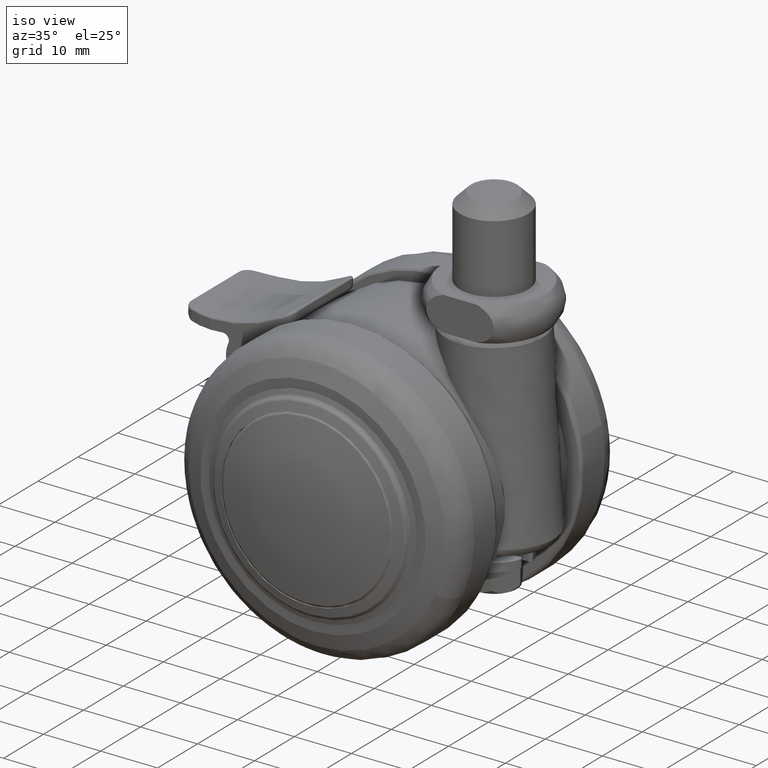
[diagram: clean part render]
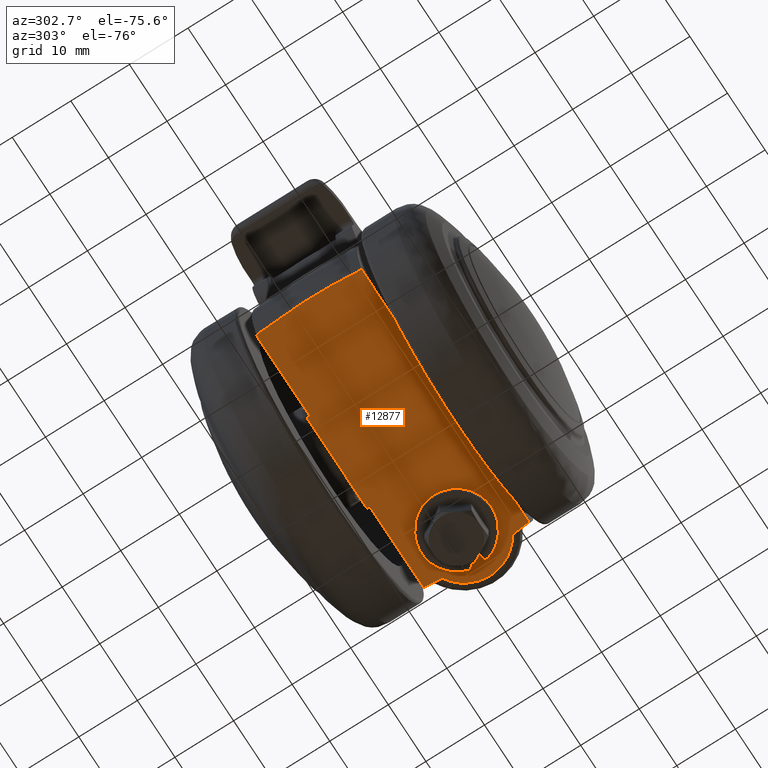
[diagram: tour spotlight — one face highlighted and labeled with its STEP entity id]
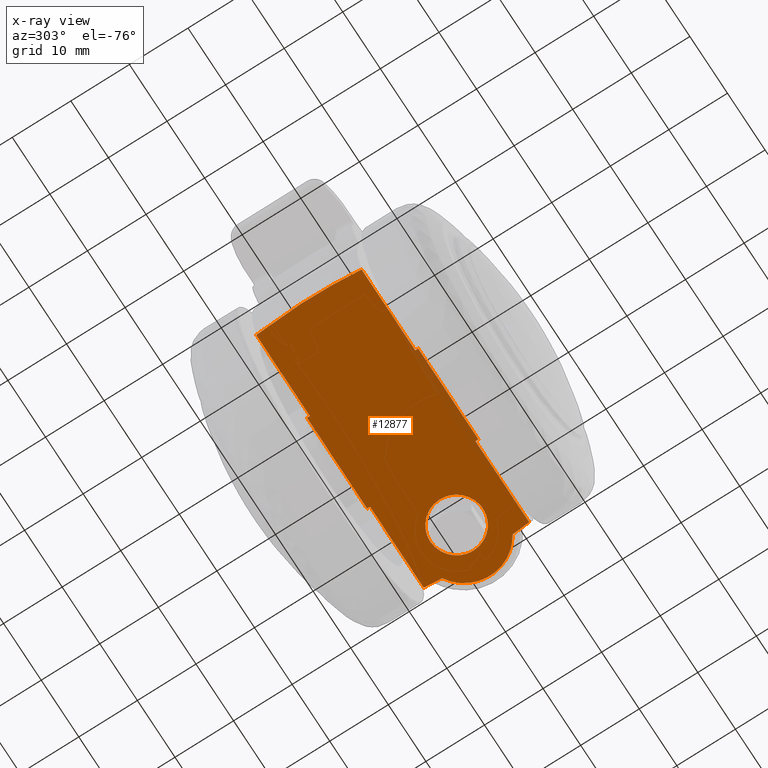
[diagram: x-ray of the same camera — body ghosted, this tour face saturated]
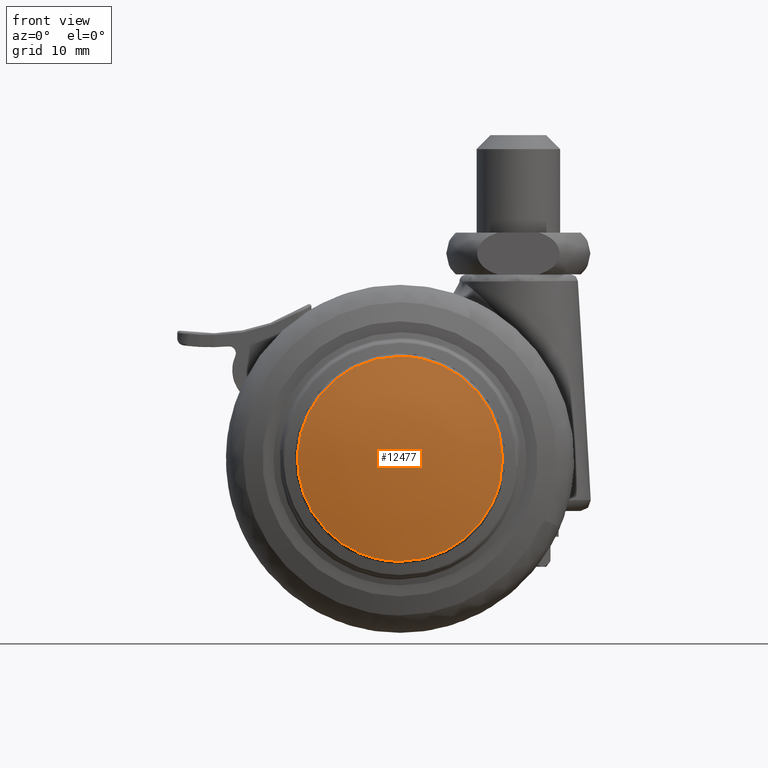
[diagram: tour spotlight — one face highlighted and labeled with its STEP entity id]
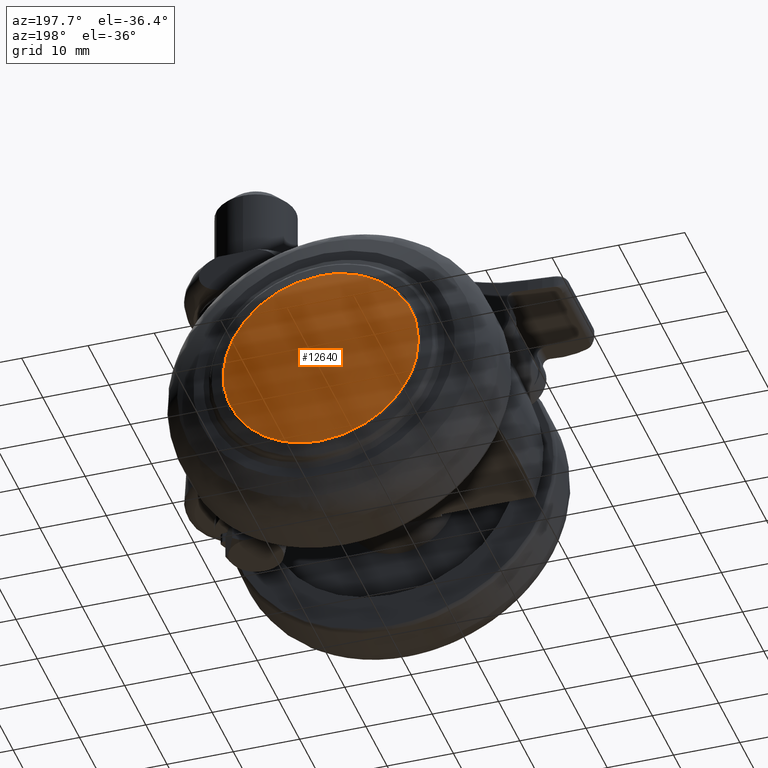
[diagram: tour spotlight — one face highlighted and labeled with its STEP entity id]
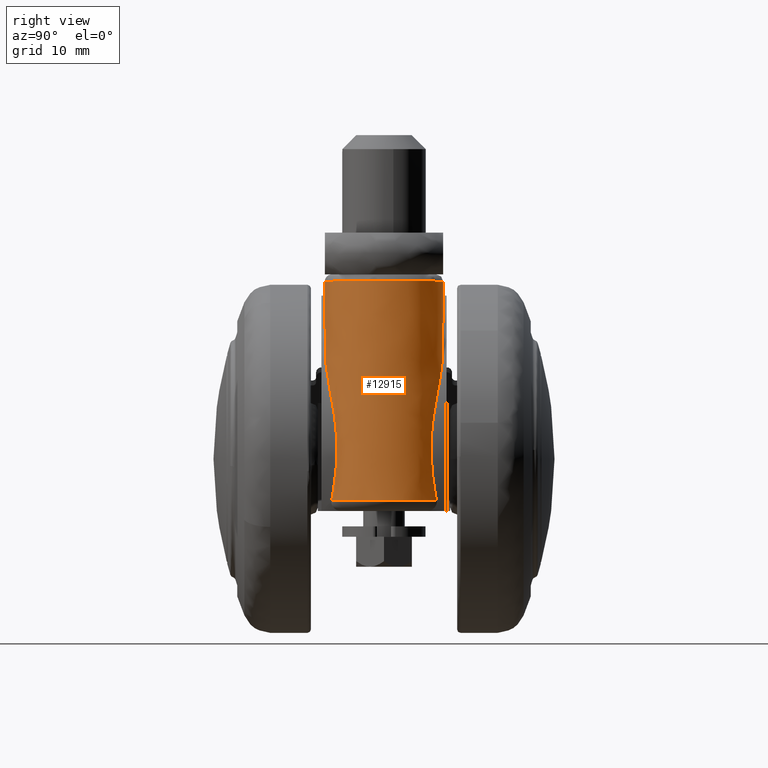
[diagram: tour spotlight — one face highlighted and labeled with its STEP entity id]
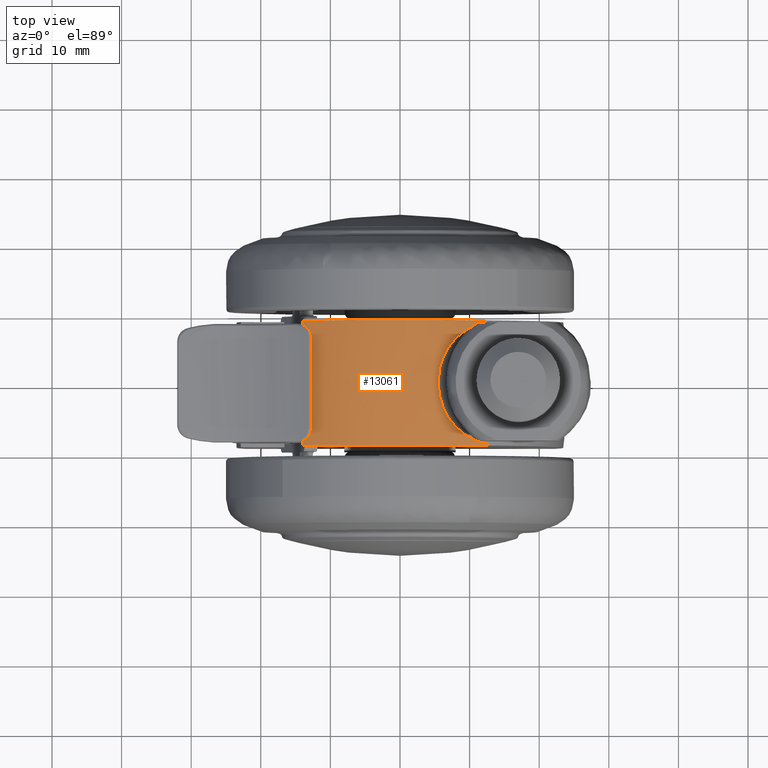
[diagram: tour spotlight — one face highlighted and labeled with its STEP entity id]
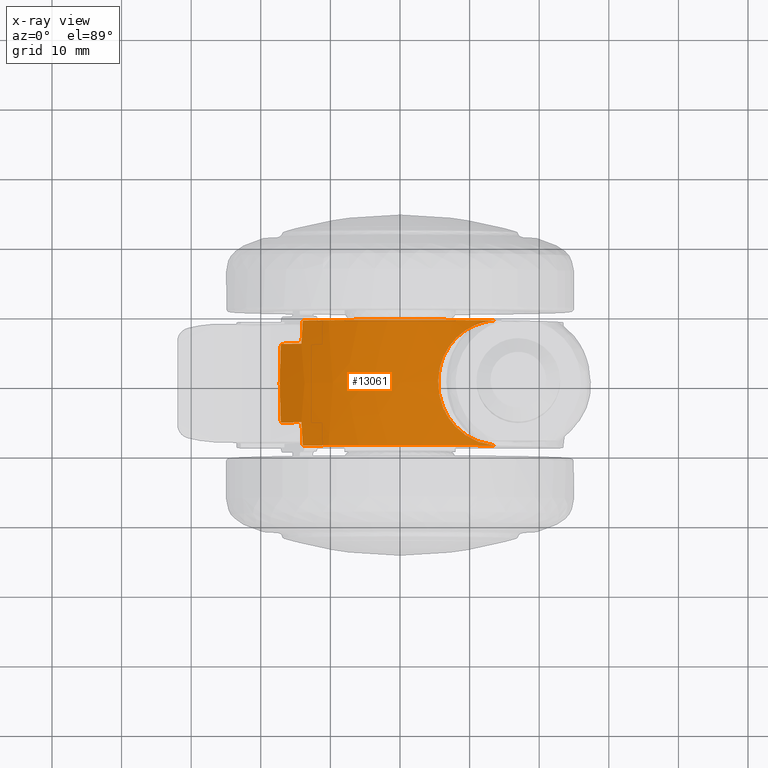
[diagram: x-ray of the same camera — body ghosted, this tour face saturated]
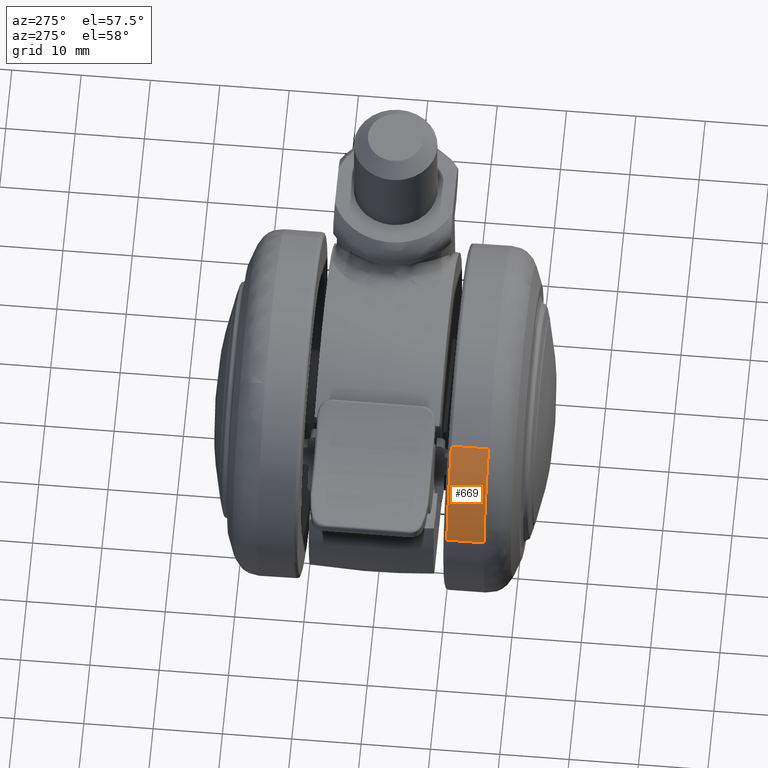
[diagram: tour spotlight — one face highlighted and labeled with its STEP entity id]
A machine part: a face-by-face anatomy tour. The part has 231 B-rep faces; the first image is the clean iso view, then the 6 largest visible faces are spotlighted one at a time (largest first), each with its STEP entity span.

Face 1 — auxiliary view, entity #12877. An x-ray twin of the same camera follows (body ghosted, this face saturated) — the face is partly hidden behind the body. In plain terms, the highlighted face is a freeform B-spline surface patch.
Definition (entity closure, byte-faithful):
#9210=CARTESIAN_POINT('',(16.441425115566751,-4.465198102937776,-7.500000000000002));
#9211=VERTEX_POINT('',#9210);
#9217=CARTESIAN_POINT('',(12.500000000000000,-2.755364E-015,-7.500000000000000));
#9218=VERTEX_POINT('',#9217);
#9219=CARTESIAN_POINT('',(16.441425115566748,-4.465198102937776,-7.500000000000002));
#9220=CARTESIAN_POINT('',(12.500000000000000,-3.972144709185574,-7.499999999999999));
#9221=CARTESIAN_POINT('',(12.500000000000000,-2.755364E-015,-7.500000000000000));
#9229=(BOUNDED_CURVE()B_SPLINE_CURVE(2,(#9219,#9220,#9221),.UNSPECIFIED.,.F.,.U.)B_SPLINE_CURVE_WITH_KNOTS((3,3),(0.271473886483405,0.500000000000000),.UNSPECIFIED.)CURVE()GEOMETRIC_REPRESENTATION_ITEM()RATIONAL_B_SPLINE_CURVE((0.954005512726151,0.732265004116784,1.0))REPRESENTATION_ITEM(''));
#9230=EDGE_CURVE('',#9211,#9218,#9229,.T.);
#9232=CARTESIAN_POINT('',(17.039269409930331,4.499828653787130,-7.500000000000000));
#9233=VERTEX_POINT('',#9232);
#9234=CARTESIAN_POINT('',(12.500000000000000,-2.755364E-015,-7.500000000000000));
#9235=CARTESIAN_POINT('',(12.499999999999998,4.499999999999998,-7.500000000000000));
#9236=CARTESIAN_POINT('',(17.0,4.499999999999997,-7.500000000000000));
#9237=CARTESIAN_POINT('',(17.019635078880803,4.499999999999997,-7.500000000000000));
#9238=CARTESIAN_POINT('',(17.039269409930338,4.499828653787130,-7.500000000000000));
#9246=(BOUNDED_CURVE()B_SPLINE_CURVE(2,(#9234,#9235,#9236,#9237,#9238),.UNSPECIFIED.,.F.,.U.)B_SPLINE_CURVE_WITH_KNOTS((3,2,3),(0.500000000000000,0.750000000000000,0.751539894349677),.UNSPECIFIED.)CURVE()GEOMETRIC_REPRESENTATION_ITEM()RATIONAL_B_SPLINE_CURVE((1.0,0.707106781186547,1.0,0.998195901549162,0.996414028066409))REPRESENTATION_ITEM(''));
#9247=EDGE_CURVE('',#9218,#9233,#9246,.T.);
#9327=CARTESIAN_POINT('',(21.500000000000000,-2.755364E-015,-7.500000000000000));
#9328=VERTEX_POINT('',#9327);
#9329=CARTESIAN_POINT('',(17.039269409930334,4.499828653787131,-7.500000000000000));
#9330=CARTESIAN_POINT('',(21.500000000000004,4.460900447305330,-7.500000000000000));
#9331=CARTESIAN_POINT('',(21.500000000000000,-2.755364E-015,-7.500000000000000));
#9339=(BOUNDED_CURVE()B_SPLINE_CURVE(2,(#9329,#9330,#9331),.UNSPECIFIED.,.F.,.U.)B_SPLINE_CURVE_WITH_KNOTS((3,3),(0.751539894349678,1.0),.UNSPECIFIED.)CURVE()GEOMETRIC_REPRESENTATION_ITEM()RATIONAL_B_SPLINE_CURVE((0.996414028066407,0.708910879637387,1.0))REPRESENTATION_ITEM(''));
#9340=EDGE_CURVE('',#9233,#9328,#9339,.T.);
#9342=CARTESIAN_POINT('',(21.500000000000000,-2.755364E-015,-7.500000000000000));
#9343=CARTESIAN_POINT('',(21.500000000000000,-4.500000000000004,-7.500000000000000));
#9344=CARTESIAN_POINT('',(17.0,-4.500000000000003,-7.500000000000000));
#9345=CARTESIAN_POINT('',(16.719628395146557,-4.500000000000003,-7.500000000000000));
#9346=CARTESIAN_POINT('',(16.441425115566748,-4.465198102937776,-7.500000000000002));
#9354=(BOUNDED_CURVE()B_SPLINE_CURVE(2,(#9342,#9343,#9344,#9345,#9346),.UNSPECIFIED.,.F.,.U.)B_SPLINE_CURVE_WITH_KNOTS((3,2,3),(0.0,0.250000000000000,0.271473886483405),.UNSPECIFIED.)CURVE()GEOMETRIC_REPRESENTATION_ITEM()RATIONAL_B_SPLINE_CURVE((1.0,0.707106781186547,1.0,0.974841777069763,0.954005512726151))REPRESENTATION_ITEM(''));
#9355=EDGE_CURVE('',#9328,#9211,#9354,.T.);
#11258=CARTESIAN_POINT('',(22.508473345036649,6.008970139218520,-7.500000000000000));
#11259=VERTEX_POINT('',#11258);
#12270=CARTESIAN_POINT('',(22.508473345036649,-6.008970139218490,-7.500000000000000));
#12271=VERTEX_POINT('',#12270);
#12377=CARTESIAN_POINT('',(22.508473345036649,6.008970139218517,-7.500000000000000));
#12378=CARTESIAN_POINT('',(25.923797487043977,3.971716724947550,-7.500000000000000));
#12379=CARTESIAN_POINT('',(25.923797487043981,8.572244E-016,-7.500000000000000));
#12380=CARTESIAN_POINT('',(25.923797487043977,-3.971716724947548,-7.500000000000000));
#12381=CARTESIAN_POINT('',(22.508473345036649,-6.008970139218516,-7.500000000000000));
#12389=(BOUNDED_CURVE()B_SPLINE_CURVE(2,(#12377,#12378,#12379,#12380,#12381),.UNSPECIFIED.,.F.,.U.)B_SPLINE_CURVE_WITH_KNOTS((3,2,3),(0.0,0.500000000000000,1.0),.UNSPECIFIED.)CURVE()GEOMETRIC_REPRESENTATION_ITEM()RATIONAL_B_SPLINE_CURVE((1.0,0.869752913530884,1.0,0.869752913530884,1.0))REPRESENTATION_ITEM(''));
#12390=EDGE_CURVE('',#11259,#12271,#12389,.T.);
#12485=CARTESIAN_POINT('',(8.000000000000199,-9.0,-7.500000000000000));
#12486=VERTEX_POINT('',#12485);
#12499=CARTESIAN_POINT('',(8.000000000000231,-9.499999999999890,-7.500000000000000));
#12500=VERTEX_POINT('',#12499);
#12506=CARTESIAN_POINT('',(8.000000000000199,-9.0,-7.500000000000000));
#12507=CARTESIAN_POINT('',(8.000000000000231,-9.499999999999890,-7.500000000000000));
#12508=QUASI_UNIFORM_CURVE('',1,(#12506,#12507),.UNSPECIFIED.,.F.,.U.);
#12509=EDGE_CURVE('',#12486,#12500,#12508,.T.);
#12528=CARTESIAN_POINT('',(-7.999999999999789,-9.0,-7.500000000000000));
#12529=VERTEX_POINT('',#12528);
#12535=CARTESIAN_POINT('',(-7.999999999999789,-9.499999999999890,-7.500000000000000));
#12536=VERTEX_POINT('',#12535);
#12537=CARTESIAN_POINT('',(-7.999999999999789,-9.0,-7.500000000000000));
#12538=CARTESIAN_POINT('',(-7.999999999999789,-9.499999999999890,-7.500000000000000));
#12539=QUASI_UNIFORM_CURVE('',1,(#12537,#12538),.UNSPECIFIED.,.F.,.U.);
#12540=EDGE_CURVE('',#12529,#12536,#12539,.T.);
#12578=CARTESIAN_POINT('',(-7.999999999999789,-9.499999999999890,-7.500000000000000));
#12579=CARTESIAN_POINT('',(8.000000000000231,-9.499999999999890,-7.500000000000000));
#12580=QUASI_UNIFORM_CURVE('',1,(#12578,#12579),.UNSPECIFIED.,.F.,.U.);
#12581=EDGE_CURVE('',#12536,#12500,#12580,.T.);
#12682=CARTESIAN_POINT('',(8.000000000000231,9.500000000000108,-7.500000000000000));
#12683=VERTEX_POINT('',#12682);
#12689=CARTESIAN_POINT('',(-7.999999999999789,9.500000000000108,-7.500000000000000));
#12690=VERTEX_POINT('',#12689);
#12691=CARTESIAN_POINT('',(-7.999999999999789,9.500000000000108,-7.500000000000000));
#12692=CARTESIAN_POINT('',(8.000000000000231,9.500000000000108,-7.500000000000000));
#12693=QUASI_UNIFORM_CURVE('',1,(#12691,#12692),.UNSPECIFIED.,.F.,.U.);
#12694=EDGE_CURVE('',#12690,#12683,#12693,.T.);
#12716=CARTESIAN_POINT('',(-7.999999999999789,8.999999999999901,-7.500000000000000));
#12717=VERTEX_POINT('',#12716);
#12718=CARTESIAN_POINT('',(-7.999999999999789,9.500000000000108,-7.500000000000000));
#12719=CARTESIAN_POINT('',(-7.999999999999789,8.999999999999901,-7.500000000000000));
#12720=QUASI_UNIFORM_CURVE('',1,(#12718,#12719),.UNSPECIFIED.,.F.,.U.);
#12721=EDGE_CURVE('',#12690,#12717,#12720,.T.);
#12738=CARTESIAN_POINT('',(8.000000000000231,8.999999999999901,-7.500000000000000));
#12739=VERTEX_POINT('',#12738);
#12745=CARTESIAN_POINT('',(8.000000000000231,9.500000000000108,-7.500000000000000));
#12746=CARTESIAN_POINT('',(8.000000000000231,8.999999999999901,-7.500000000000000));
#12747=QUASI_UNIFORM_CURVE('',1,(#12745,#12746),.UNSPECIFIED.,.F.,.U.);
#12748=EDGE_CURVE('',#12683,#12739,#12747,.T.);
#12780=CARTESIAN_POINT('',(22.271056962330849,-9.0,-7.500000000000000));
#12781=VERTEX_POINT('',#12780);
#12795=CARTESIAN_POINT('',(22.271056962330849,-9.0,-7.500000000000000));
#12796=CARTESIAN_POINT('',(22.365907716105198,-8.005315201643915,-7.500000000000000));
#12797=CARTESIAN_POINT('',(22.445051108199991,-7.008305928470444,-7.500000000000000));
#12798=CARTESIAN_POINT('',(22.508473345036649,-6.008970139218490,-7.500000000000000));
#12799=B_SPLINE_CURVE_WITH_KNOTS('',3,(#12795,#12796,#12797,#12798),.UNSPECIFIED.,.F.,.U.,(4,4),(0.987302015286309,1.0),.UNSPECIFIED.);
#12800=EDGE_CURVE('',#12781,#12271,#12799,.T.);
#12805=CARTESIAN_POINT('',(-25.127545805969270,-10.449049963174200,-7.500000000000000));
#12806=CARTESIAN_POINT('',(28.352499684814891,-10.449049963174200,-7.500000000000000));
#12807=CARTESIAN_POINT('',(-25.127545805969270,10.449050472794140,-7.500000000000000));
#12808=CARTESIAN_POINT('',(28.352499684814891,10.449050472794140,-7.500000000000000));
#12809=B_SPLINE_SURFACE_WITH_KNOTS('',1,1,((#12805,#12807),(#12806,#12808)),.UNSPECIFIED.,.F.,.F.,.U.,(2,2),(2,2),(0.0,53.480045490784157),(0.0,20.898100435968342),.UNSPECIFIED.);
#12810=CARTESIAN_POINT('',(22.271056962330899,9.0,-7.500000000000000));
#12811=VERTEX_POINT('',#12810);
#12812=CARTESIAN_POINT('',(22.508473345036649,6.008970139218520,-7.500000000000000));
#12813=CARTESIAN_POINT('',(22.445029146177308,7.008649669417468,-7.500000000000000));
#12814=CARTESIAN_POINT('',(22.365875098585281,8.005657028487292,-7.500000000000001));
#12815=CARTESIAN_POINT('',(22.271056962330899,9.0,-7.500000000000000));
#12816=B_SPLINE_CURVE_WITH_KNOTS('',3,(#12812,#12813,#12814,#12815),.UNSPECIFIED.,.F.,.U.,(4,4),(0.0,0.012657862134114),.UNSPECIFIED.);
#12817=EDGE_CURVE('',#11259,#12811,#12816,.T.);
#12818=ORIENTED_EDGE('',*,*,#12817,.F.);
#12819=ORIENTED_EDGE('',*,*,#12390,.T.);
#12820=ORIENTED_EDGE('',*,*,#12800,.F.);
#12821=CARTESIAN_POINT('',(22.271056962330849,-9.0,-7.500000000000000));
#12822=CARTESIAN_POINT('',(8.000000000000199,-9.0,-7.500000000000000));
#12823=QUASI_UNIFORM_CURVE('',1,(#12821,#12822),.UNSPECIFIED.,.F.,.U.);
#12824=EDGE_CURVE('',#12781,#12486,#12823,.T.);
#12825=ORIENTED_EDGE('',*,*,#12824,.T.);
#12826=ORIENTED_EDGE('',*,*,#12509,.T.);
#12827=ORIENTED_EDGE('',*,*,#12581,.F.);
#12828=ORIENTED_EDGE('',*,*,#12540,.F.);
#12829=CARTESIAN_POINT('',(-22.271056962330899,-9.0,-7.500000000000000));
#12830=VERTEX_POINT('',#12829);
#12831=CARTESIAN_POINT('',(-7.999999999999789,-9.0,-7.500000000000000));
#12832=CARTESIAN_POINT('',(-22.271056962330899,-9.0,-7.500000000000000));
#12833=QUASI_UNIFORM_CURVE('',1,(#12831,#12832),.UNSPECIFIED.,.F.,.U.);
#12834=EDGE_CURVE('',#12529,#12830,#12833,.T.);
#12835=ORIENTED_EDGE('',*,*,#12834,.T.);
#12836=CARTESIAN_POINT('',(-22.271056962330899,9.0,-7.500000000000000));
#12837=VERTEX_POINT('',#12836);
#12838=CARTESIAN_POINT('',(-22.271056962330899,9.0,-7.500000000000000));
#12839=CARTESIAN_POINT('',(-22.326246436391131,8.421113523567511,-7.500000000000000));
#12840=CARTESIAN_POINT('',(-22.376107840399680,7.841567522138998,-7.500000000000000));
#12841=CARTESIAN_POINT('',(-22.607889066678592,4.822462405177966,-7.500000000000000));
#12842=CARTESIAN_POINT('',(-22.701146241926342,2.371928352875127,-7.499999999999999));
#12843=CARTESIAN_POINT('',(-22.697628886571451,-1.321623607242038,-7.499999999999997));
#12844=CARTESIAN_POINT('',(-22.672520384214948,-2.555770472345564,-7.500000000000002));
#12845=CARTESIAN_POINT('',(-22.610680921234270,-4.102223723649644,-7.499999999999999));
#12846=CARTESIAN_POINT('',(-22.596786909220739,-4.411712442788734,-7.500000000000001));
#12847=CARTESIAN_POINT('',(-22.566012359647061,-5.029699530149097,-7.499999999999998));
#12848=CARTESIAN_POINT('',(-22.515351681856671,-5.955708155191383,-7.500000000000001));
#12849=CARTESIAN_POINT('',(-22.451252646681070,-6.878813337347844,-7.500000000000000));
#12850=CARTESIAN_POINT('',(-22.362715623734921,-7.996148128712547,-7.500000000000000));
#12851=CARTESIAN_POINT('',(-22.318867952421201,-8.498502214515414,-7.500000000000000));
#12852=CARTESIAN_POINT('',(-22.271056962330899,-9.0,-7.500000000000000));
#12853=B_SPLINE_CURVE_WITH_KNOTS('',3,(#12838,#12839,#12840,#12841,#12842,#12843,#12844,#12845,#12846,#12847,#12848,#12849,#12850,#12851,#12852),.UNSPECIFIED.,.F.,.U.,(4,2,2,2,2,1,2,4),(0.461315755579124,0.468749999999992,0.499999999999991,0.515624999999991,0.519531249999991,0.523437499999991,0.531249999999991,0.537651572681553),.UNSPECIFIED.);
#12854=EDGE_CURVE('',#12837,#12830,#12853,.T.);
#12855=ORIENTED_EDGE('',*,*,#12854,.F.);
#12856=CARTESIAN_POINT('',(-22.271056962330899,9.0,-7.500000000000000));
#12857=CARTESIAN_POINT('',(-7.999999999999789,8.999999999999901,-7.500000000000000));
#12858=QUASI_UNIFORM_CURVE('',1,(#12856,#12857),.UNSPECIFIED.,.F.,.U.);
#12859=EDGE_CURVE('',#12837,#12717,#12858,.T.);
#12860=ORIENTED_EDGE('',*,*,#12859,.T.);
#12861=ORIENTED_EDGE('',*,*,#12721,.F.);
#12862=ORIENTED_EDGE('',*,*,#12694,.T.);
#12863=ORIENTED_EDGE('',*,*,#12748,.T.);
#12864=CARTESIAN_POINT('',(8.000000000000231,8.999999999999901,-7.500000000000000));
#12865=CARTESIAN_POINT('',(22.271056962330899,9.0,-7.500000000000000));
#12866=QUASI_UNIFORM_CURVE('',1,(#12864,#12865),.UNSPECIFIED.,.F.,.U.);
#12867=EDGE_CURVE('',#12739,#12811,#12866,.T.);
#12868=ORIENTED_EDGE('',*,*,#12867,.T.);
#12869=EDGE_LOOP('',(#12818,#12819,#12820,#12825,#12826,#12827,#12828,#12835,#12855,#12860,#12861,#12862,#12863,#12868));
#12870=FACE_OUTER_BOUND('',#12869,.T.);
#12871=ORIENTED_EDGE('',*,*,#9247,.F.);
#12872=ORIENTED_EDGE('',*,*,#9230,.F.);
#12873=ORIENTED_EDGE('',*,*,#9355,.F.);
#12874=ORIENTED_EDGE('',*,*,#9340,.F.);
#12875=EDGE_LOOP('',(#12871,#12872,#12873,#12874));
#12876=FACE_BOUND('',#12875,.T.);
#12877=ADVANCED_FACE('',(#12870,#12876),#12809,.F.);

Face 2 — front view, entity #12477. In plain terms, the highlighted face is a freeform B-spline surface patch.
Definition (entity closure, byte-faithful):
#9393=CARTESIAN_POINT('',(-5.926938161823629,-22.599255053341821,-13.481635294383310));
#9394=VERTEX_POINT('',#9393);
#9408=CARTESIAN_POINT('',(0.0,-22.599255056601049,14.726951002130299));
#9409=VERTEX_POINT('',#9408);
#9410=CARTESIAN_POINT('',(0.0,-22.599255056601049,14.726951002130299));
#9411=CARTESIAN_POINT('',(-14.726951002130306,-22.599255056601042,14.726951002130306));
#9412=CARTESIAN_POINT('',(-14.726951002130299,-22.599255056601049,2.621149E-016));
#9413=CARTESIAN_POINT('',(-14.726951002130306,-22.599255056601049,-9.612881172707649));
#9414=CARTESIAN_POINT('',(-5.926938161823629,-22.599255053341825,-13.481635294383311));
#9422=(BOUNDED_CURVE()B_SPLINE_CURVE(2,(#9410,#9411,#9412,#9413,#9414),.UNSPECIFIED.,.F.,.U.)B_SPLINE_CURVE_WITH_KNOTS((3,2,3),(0.0,0.250000000000000,0.431662010431912),.UNSPECIFIED.)CURVE()GEOMETRIC_REPRESENTATION_ITEM()RATIONAL_B_SPLINE_CURVE((1.0,0.707106781186547,1.0,0.787169716113897,0.883644850240147))REPRESENTATION_ITEM(''));
#9423=EDGE_CURVE('',#9409,#9394,#9422,.T.);
#9425=CARTESIAN_POINT('',(14.309172923474350,-22.599255056404651,-3.482909141406370));
#9426=VERTEX_POINT('',#9425);
#9427=CARTESIAN_POINT('',(14.309172923474343,-22.599255056404655,-3.482909141406371));
#9428=CARTESIAN_POINT('',(14.726951002130305,-22.599255056601042,-1.766510998526677));
#9429=CARTESIAN_POINT('',(14.726951002130299,-22.599255056601049,2.621149E-016));
#9430=CARTESIAN_POINT('',(14.726951002130306,-22.599255056601042,14.726951002130306));
#9431=CARTESIAN_POINT('',(0.0,-22.599255056601049,14.726951002130299));
#9439=(BOUNDED_CURVE()B_SPLINE_CURVE(2,(#9427,#9428,#9429,#9430,#9431),.UNSPECIFIED.,.F.,.U.)B_SPLINE_CURVE_WITH_KNOTS((3,2,3),(0.709598322307067,0.750000000000000,1.0),.UNSPECIFIED.)CURVE()GEOMETRIC_REPRESENTATION_ITEM()RATIONAL_B_SPLINE_CURVE((0.920631806224154,0.952666490300212,1.0,0.707106781186547,1.0))REPRESENTATION_ITEM(''));
#9440=EDGE_CURVE('',#9426,#9409,#9439,.T.);
#9485=CARTESIAN_POINT('',(0.0,-22.599255056601049,-14.726951002130299));
#9486=VERTEX_POINT('',#9485);
#9487=CARTESIAN_POINT('',(0.0,-22.599255056601049,-14.726951002130299));
#9488=CARTESIAN_POINT('',(11.572328774366369,-22.599255056601042,-14.726951002130292));
#9489=CARTESIAN_POINT('',(14.309172923474343,-22.599255056404655,-3.482909141406371));
#9497=(BOUNDED_CURVE()B_SPLINE_CURVE(2,(#9487,#9488,#9489),.UNSPECIFIED.,.F.,.U.)B_SPLINE_CURVE_WITH_KNOTS((3,3),(0.500000000000000,0.709598322307067),.UNSPECIFIED.)CURVE()GEOMETRIC_REPRESENTATION_ITEM()RATIONAL_B_SPLINE_CURVE((1.0,0.754440290886334,0.920631806224155))REPRESENTATION_ITEM(''));
#9498=EDGE_CURVE('',#9486,#9426,#9497,.T.);
#9500=CARTESIAN_POINT('',(-5.926938161823630,-22.599255053341821,-13.481635294383306));
#9501=CARTESIAN_POINT('',(-3.094296429752677,-22.599255056601042,-14.726951002130303));
#9502=CARTESIAN_POINT('',(0.0,-22.599255056601049,-14.726951002130299));
#9510=(BOUNDED_CURVE()B_SPLINE_CURVE(2,(#9500,#9501,#9502),.UNSPECIFIED.,.F.,.U.)B_SPLINE_CURVE_WITH_KNOTS((3,3),(0.431662010431912,0.500000000000000),.UNSPECIFIED.)CURVE()GEOMETRIC_REPRESENTATION_ITEM()RATIONAL_B_SPLINE_CURVE((0.883644850240147,0.919937065072650,1.0))REPRESENTATION_ITEM(''));
#9511=EDGE_CURVE('',#9394,#9486,#9510,.T.);
#12447=CARTESIAN_POINT('',(-15.825335308012173,-20.006889155389683,-15.830162376174354));
#12448=CARTESIAN_POINT('',(-8.068882149980617,-22.208393669579205,-16.142686665695969));
#12449=CARTESIAN_POINT('',(8.071201834484377,-22.208393669579205,-16.142686665695969));
#12450=CARTESIAN_POINT('',(15.829708624642203,-20.005647696723457,-15.829986139430286));
#12451=CARTESIAN_POINT('',(-16.137958689881803,-22.209763421742831,-8.071440557454837));
#12452=CARTESIAN_POINT('',(-8.231490096306130,-24.499999999999989,-8.234000878099863));
#12453=CARTESIAN_POINT('',(8.233856528194007,-24.499999999999989,-8.234000878099863));
#12454=CARTESIAN_POINT('',(16.142414849529722,-22.208472429815654,-8.071348923226470));
#12455=CARTESIAN_POINT('',(-16.137958689881803,-22.209763421742831,8.071440443190298));
#12456=CARTESIAN_POINT('',(-8.231490096306130,-24.499999999999989,8.234000761534015));
#12457=CARTESIAN_POINT('',(8.233856528194007,-24.499999999999989,8.234000761534015));
#12458=CARTESIAN_POINT('',(16.142414849529722,-22.208472429815654,8.071348808963228));
#12459=CARTESIAN_POINT('',(-15.825335316692101,-20.006889216552068,15.830162160754906));
#12460=CARTESIAN_POINT('',(-8.068882154493638,-22.208393733180419,16.142686446198443));
#12461=CARTESIAN_POINT('',(8.071201838998693,-22.208393733180419,16.142686446198443));
#12462=CARTESIAN_POINT('',(15.829708633324433,-20.005647757884482,15.829985924013140));
#12470=(BOUNDED_SURFACE()B_SPLINE_SURFACE(2,2,((#12447,#12451,#12455,#12459),(#12448,#12452,#12456,#12460),(#12449,#12453,#12457,#12461),(#12450,#12454,#12458,#12462)),.UNSPECIFIED.,.F.,.F.,.U.)B_SPLINE_SURFACE_WITH_KNOTS((3,1,3),(3,1,3),(13.227592718315121,29.153157823789741,45.083301294136049),(13.222735077905661,29.153157823789741,45.083580344152452),.UNSPECIFIED.)GEOMETRIC_REPRESENTATION_ITEM()RATIONAL_B_SPLINE_SURFACE(((1.040292661873473,1.020140186809018,1.020140186809018,1.040292661302890),(1.020152475064455,1.0,1.0,1.020152474493872),(1.020152475064455,1.0,1.0,1.020152474493872),(1.040304243550803,1.020151768486348,1.020151768486348,1.040304242980220)))REPRESENTATION_ITEM('')SURFACE());
#12471=ORIENTED_EDGE('',*,*,#9423,.T.);
#12472=ORIENTED_EDGE('',*,*,#9511,.T.);
#12473=ORIENTED_EDGE('',*,*,#9498,.T.);
#12474=ORIENTED_EDGE('',*,*,#9440,.T.);
#12475=EDGE_LOOP('',(#12471,#12472,#12473,#12474));
#12476=FACE_OUTER_BOUND('',#12475,.T.);
#12477=ADVANCED_FACE('',(#12476),#12470,.T.);

Face 3 — auxiliary view, entity #12640. In plain terms, the highlighted face is a freeform B-spline surface patch.
Definition (entity closure, byte-faithful):
#9549=CARTESIAN_POINT('',(5.926938161823641,22.599255053341800,-13.481635294383331));
#9550=VERTEX_POINT('',#9549);
#9564=CARTESIAN_POINT('',(0.0,22.599255056600999,14.726951002130320));
#9565=VERTEX_POINT('',#9564);
#9566=CARTESIAN_POINT('',(0.0,22.599255056600999,14.726951002130320));
#9567=CARTESIAN_POINT('',(14.726951002130319,22.599255056600999,14.726951002130319));
#9568=CARTESIAN_POINT('',(14.726951002130320,22.599255056600999,-2.621149E-016));
#9569=CARTESIAN_POINT('',(14.726951002130319,22.599255056600992,-9.612881172707668));
#9570=CARTESIAN_POINT('',(5.926938161823641,22.599255053341789,-13.481635294383334));
#9578=(BOUNDED_CURVE()B_SPLINE_CURVE(2,(#9566,#9567,#9568,#9569,#9570),.UNSPECIFIED.,.F.,.U.)B_SPLINE_CURVE_WITH_KNOTS((3,2,3),(0.500000000000000,0.750000000000000,0.931662010431912),.UNSPECIFIED.)CURVE()GEOMETRIC_REPRESENTATION_ITEM()RATIONAL_B_SPLINE_CURVE((1.0,0.707106781186548,1.0,0.787169716113897,0.883644850240147))REPRESENTATION_ITEM(''));
#9579=EDGE_CURVE('',#9565,#9550,#9578,.T.);
#9581=CARTESIAN_POINT('',(-14.309172923474369,22.599255056404619,-3.482909141406380));
#9582=VERTEX_POINT('',#9581);
#9583=CARTESIAN_POINT('',(-14.309172923474376,22.599255056404626,-3.482909141406380));
#9584=CARTESIAN_POINT('',(-14.726951002130326,22.599255056601002,-1.766510998526684));
#9585=CARTESIAN_POINT('',(-14.726951002130320,22.599255056600999,-2.621149E-016));
#9586=CARTESIAN_POINT('',(-14.726951002130319,22.599255056600999,14.726951002130319));
#9587=CARTESIAN_POINT('',(0.0,22.599255056600999,14.726951002130320));
#9595=(BOUNDED_CURVE()B_SPLINE_CURVE(2,(#9583,#9584,#9585,#9586,#9587),.UNSPECIFIED.,.F.,.U.)B_SPLINE_CURVE_WITH_KNOTS((3,2,3),(0.209598322307066,0.250000000000000,0.500000000000000),.UNSPECIFIED.)CURVE()GEOMETRIC_REPRESENTATION_ITEM()RATIONAL_B_SPLINE_CURVE((0.920631806224154,0.952666490300212,1.0,0.707106781186548,1.0))REPRESENTATION_ITEM(''));
#9596=EDGE_CURVE('',#9582,#9565,#9595,.T.);
#9641=CARTESIAN_POINT('',(0.0,22.599255056600999,-14.726951002130320));
#9642=VERTEX_POINT('',#9641);
#9643=CARTESIAN_POINT('',(0.0,22.599255056600999,-14.726951002130320));
#9644=CARTESIAN_POINT('',(-11.572328774366317,22.599255056600992,-14.726951002130322));
#9645=CARTESIAN_POINT('',(-14.309172923474378,22.599255056404619,-3.482909141406380));
#9653=(BOUNDED_CURVE()B_SPLINE_CURVE(2,(#9643,#9644,#9645),.UNSPECIFIED.,.F.,.U.)B_SPLINE_CURVE_WITH_KNOTS((3,3),(0.0,0.209598322307066),.UNSPECIFIED.)CURVE()GEOMETRIC_REPRESENTATION_ITEM()RATIONAL_B_SPLINE_CURVE((1.0,0.754440290886335,0.920631806224154))REPRESENTATION_ITEM(''));
#9654=EDGE_CURVE('',#9642,#9582,#9653,.T.);
#9656=CARTESIAN_POINT('',(5.926938161823641,22.599255053341793,-13.481635294383336));
#9657=CARTESIAN_POINT('',(3.094296429752681,22.599255056600999,-14.726951002130324));
#9658=CARTESIAN_POINT('',(0.0,22.599255056600999,-14.726951002130320));
#9666=(BOUNDED_CURVE()B_SPLINE_CURVE(2,(#9656,#9657,#9658),.UNSPECIFIED.,.F.,.U.)B_SPLINE_CURVE_WITH_KNOTS((3,3),(0.931662010431912,1.0),.UNSPECIFIED.)CURVE()GEOMETRIC_REPRESENTATION_ITEM()RATIONAL_B_SPLINE_CURVE((0.883644850240147,0.919937065072651,1.0))REPRESENTATION_ITEM(''));
#9667=EDGE_CURVE('',#9550,#9642,#9666,.T.);
#12610=CARTESIAN_POINT('',(-15.829709842010661,20.005647351095902,15.829986090365244));
#12611=CARTESIAN_POINT('',(-8.071202480209092,22.208393669579195,16.142686665696019));
#12612=CARTESIAN_POINT('',(8.068882567178905,22.208393669579195,16.142686665696019));
#12613=CARTESIAN_POINT('',(15.825336094572215,20.006888932141290,15.830162344482185));
#12614=CARTESIAN_POINT('',(-16.142416089958182,22.208472070397931,8.071348897715129));
#12615=CARTESIAN_POINT('',(-8.233857186931674,24.499999999999989,8.234000878099884));
#12616=CARTESIAN_POINT('',(8.231490521911994,24.499999999999989,8.234000878099884));
#12617=CARTESIAN_POINT('',(16.137959491341814,22.209763189586987,8.071440540976507));
#12618=CARTESIAN_POINT('',(-16.142416089958182,22.208472070397931,-8.071348783451848));
#12619=CARTESIAN_POINT('',(-8.233857186931674,24.499999999999989,-8.234000761533995));
#12620=CARTESIAN_POINT('',(8.231490521911994,24.499999999999989,-8.234000761533995));
#12621=CARTESIAN_POINT('',(16.137959491341814,22.209763189586987,-8.071440426711929));
#12622=CARTESIAN_POINT('',(-15.829709850692895,20.005647412256948,-15.829985874948019));
#12623=CARTESIAN_POINT('',(-8.071202484723408,22.208393733180419,-16.142686446198404));
#12624=CARTESIAN_POINT('',(8.068882571691924,22.208393733180419,-16.142686446198404));
#12625=CARTESIAN_POINT('',(15.825336103252146,20.006888993303701,-15.830162129062655));
#12633=(BOUNDED_SURFACE()B_SPLINE_SURFACE(2,2,((#12610,#12614,#12618,#12622),(#12611,#12615,#12619,#12623),(#12612,#12616,#12620,#12624),(#12613,#12617,#12621,#12625)),.UNSPECIFIED.,.F.,.F.,.U.)B_SPLINE_SURFACE_WITH_KNOTS((3,1,3),(3,1,3),(13.223013078975679,29.153157823789790,45.078723752689363),(13.222735077905661,29.153157823789780,45.083580344152452),.UNSPECIFIED.)GEOMETRIC_REPRESENTATION_ITEM()RATIONAL_B_SPLINE_SURFACE(((1.040304246775229,1.020151771710773,1.020151771710773,1.040304246204646),(1.020152475064455,1.0,1.0,1.020152474493872),(1.020152475064455,1.0,1.0,1.020152474493872),(1.040292663956154,1.020140188891698,1.020140188891698,1.040292663385571)))REPRESENTATION_ITEM('')SURFACE());
#12634=ORIENTED_EDGE('',*,*,#9654,.T.);
#12635=ORIENTED_EDGE('',*,*,#9596,.T.);
#12636=ORIENTED_EDGE('',*,*,#9579,.T.);
#12637=ORIENTED_EDGE('',*,*,#9667,.T.);
#12638=EDGE_LOOP('',(#12634,#12635,#12636,#12637));
#12639=FACE_OUTER_BOUND('',#12638,.T.);
#12640=ADVANCED_FACE('',(#12639),#12633,.T.);

Face 4 — right view, entity #12915. In plain terms, the highlighted face is a freeform B-spline surface patch.
Definition (entity closure, byte-faithful):
#9848=CARTESIAN_POINT('',(17.056777956763629,-8.500000000000000,25.499999999999869));
#9849=VERTEX_POINT('',#9848);
#9863=CARTESIAN_POINT('',(9.075447202903510,2.952384880922540,25.444876328705998));
#9864=VERTEX_POINT('',#9863);
#9865=CARTESIAN_POINT('',(9.075447202903510,2.952384880922540,25.444876328705998));
#9866=CARTESIAN_POINT('',(11.550152189597323,9.624673196774994,25.461968069087700));
#9867=CARTESIAN_POINT('',(18.562493955646659,8.365929289971973,25.510399344786560));
#9868=CARTESIAN_POINT('',(25.574835721696012,7.107185383168953,25.558830620485427));
#9869=CARTESIAN_POINT('',(25.568038876241470,-0.008102495308164,25.558783676774439));
#9870=CARTESIAN_POINT('',(25.561242030786921,-7.123390373785282,25.558736733063455));
#9871=CARTESIAN_POINT('',(18.546508197894340,-8.368785236654317,25.510288936098171));
#9872=CARTESIAN_POINT('',(17.807436982942622,-8.499999836712162,25.505184484095029));
#9873=CARTESIAN_POINT('',(17.056777956763629,-8.500000000000000,25.499999999999861));
#9881=(BOUNDED_CURVE()B_SPLINE_CURVE(2,(#9865,#9866,#9867,#9868,#9869,#9870,#9871,#9872,#9873),.UNSPECIFIED.,.F.,.U.)B_SPLINE_CURVE_WITH_KNOTS((3,2,2,2,3),(0.0,0.250000000000000,0.500000000000000,0.750000000000000,0.783283949678068),.UNSPECIFIED.)CURVE()GEOMETRIC_REPRESENTATION_ITEM()RATIONAL_B_SPLINE_CURVE((1.0,0.766801441220863,1.0,0.766801441220863,1.0,0.766801441220863,1.0,0.968952923618389,0.946172801860271))REPRESENTATION_ITEM(''));
#9882=EDGE_CURVE('',#9864,#9849,#9881,.T.);
#9980=CARTESIAN_POINT('',(9.069811845328861,-2.937190276854305,25.444837405818650));
#9981=VERTEX_POINT('',#9980);
#9989=CARTESIAN_POINT('',(17.056777956763629,-8.500000000000000,25.499999999999869));
#9990=CARTESIAN_POINT('',(11.120948412629003,-8.499999999978323,25.459003737876895));
#9991=CARTESIAN_POINT('',(9.069811845328861,-2.937190276854326,25.444837405818689));
#9999=(BOUNDED_CURVE()B_SPLINE_CURVE(2,(#9989,#9990,#9991),.UNSPECIFIED.,.F.,.U.)B_SPLINE_CURVE_WITH_KNOTS((3,3),(0.783283949678068,1.0),.UNSPECIFIED.)CURVE()GEOMETRIC_REPRESENTATION_ITEM()RATIONAL_B_SPLINE_CURVE((0.946172801860272,0.797848517602474,1.0))REPRESENTATION_ITEM(''));
#10000=EDGE_CURVE('',#9849,#9981,#9999,.T.);
#11243=CARTESIAN_POINT('',(22.884421657853402,7.516820868601760,-5.958834475768210));
#11244=VERTEX_POINT('',#11243);
#11419=CARTESIAN_POINT('',(16.482851119549000,8.438124471990021,17.681804329725850));
#11420=VERTEX_POINT('',#11419);
#11435=CARTESIAN_POINT('',(22.884421657853402,7.516820868601760,-5.958834475768210));
#11436=CARTESIAN_POINT('',(22.941035205759501,7.479574176039711,-5.743664703561418));
#11437=CARTESIAN_POINT('',(23.053400865462059,7.405647539461216,-5.316599198990497));
#11438=CARTESIAN_POINT('',(23.197850357664532,7.299434482752839,-4.674427883910498));
#11439=CARTESIAN_POINT('',(23.323646654923451,7.199598077634553,-4.037475372915838));
#11440=CARTESIAN_POINT('',(23.429829002798911,7.107527343991423,-3.405241178190038));
#11441=CARTESIAN_POINT('',(23.517428412781779,7.024265004432325,-2.777810326827642));
#11442=CARTESIAN_POINT('',(23.586899676400659,6.950754600101239,-2.155118631816310));
#11443=CARTESIAN_POINT('',(23.638782279710110,6.887785205316636,-1.537142284235447));
#11444=CARTESIAN_POINT('',(23.673504431166311,6.836008262977459,-0.923863591479593));
#11445=CARTESIAN_POINT('',(23.691459443789832,6.795958863885354,-0.315226587847751));
#11446=CARTESIAN_POINT('',(23.694791475558990,6.728768864974462,1.135265893010022));
#11447=CARTESIAN_POINT('',(23.506254882257629,6.769606742350410,3.469992097558791));
#11448=CARTESIAN_POINT('',(22.893021020169289,7.100516303880302,6.214123630903401));
#11449=CARTESIAN_POINT('',(22.088752421635728,7.498715084716715,8.529690043623191));
#11450=CARTESIAN_POINT('',(21.227480042849709,7.860746685595074,10.449208108394190));
#11451=CARTESIAN_POINT('',(20.378032612156240,8.131655114637612,11.946957666682490));
#11452=CARTESIAN_POINT('',(19.635105109359760,8.302943642131927,13.107694932109730));
#11453=CARTESIAN_POINT('',(19.048567877204871,8.405745516386718,13.999580676893039));
#11454=CARTESIAN_POINT('',(18.388990409920719,8.479160728360197,14.976932932915050));
#11455=CARTESIAN_POINT('',(17.713875094603271,8.507064315062490,15.957575067134989));
#11456=CARTESIAN_POINT('',(17.080275599176190,8.494933682653562,16.858447289154650));
#11457=CARTESIAN_POINT('',(16.673954527198639,8.456296532415909,17.418429892401711));
#11458=CARTESIAN_POINT('',(16.482851119549000,8.438124471990021,17.681804329725850));
#11459=B_SPLINE_CURVE_WITH_KNOTS('',3,(#11435,#11436,#11437,#11438,#11439,#11440,#11441,#11442,#11443,#11444,#11445,#11446,#11447,#11448,#11449,#11450,#11451,#11452,#11453,#11454,#11455,#11456,#11457,#11458),.UNSPECIFIED.,.F.,.U.,(4,1,1,1,1,1,1,1,1,1,1,1,1,1,1,1,1,1,1,1,1,4),(0.0,0.026363962758521,0.052326769427147,0.077908219648945,0.103129012710371,0.128010749353429,0.152575925959269,0.176847920190641,0.200850967268826,0.224610126198441,0.248151235444041,0.370549190044193,0.496847238813326,0.577595991505935,0.660470245736561,0.746007352332712,0.780990271434176,0.822759933892346,0.871318893285512,0.919022303390770,0.961914075264850,1.0),.UNSPECIFIED.);
#11460=EDGE_CURVE('',#11244,#11420,#11459,.T.);
#11543=CARTESIAN_POINT('',(14.601306427490020,8.036616070161891,20.108176495131101));
#11544=VERTEX_POINT('',#11543);
#11558=CARTESIAN_POINT('',(16.482851119549000,8.438124471990021,17.681804329725850));
#11559=CARTESIAN_POINT('',(16.349956653015330,8.421569956355567,17.861884634854189));
#11560=CARTESIAN_POINT('',(16.089467455427940,8.389121107230800,18.214863772418880));
#11561=CARTESIAN_POINT('',(15.700720078826240,8.320631784174331,18.726941455700949));
#11562=CARTESIAN_POINT('',(15.323978913138021,8.239424697782685,19.212320469294550));
#11563=CARTESIAN_POINT('',(14.959603701792769,8.146762080091074,19.671343708823311));
#11564=CARTESIAN_POINT('',(14.718915710003239,8.072770945257366,19.964788324858571));
#11565=CARTESIAN_POINT('',(14.601306427490020,8.036616070161891,20.108176495131101));
#11566=B_SPLINE_CURVE_WITH_KNOTS('',3,(#11558,#11559,#11560,#11561,#11562,#11563,#11564,#11565),.UNSPECIFIED.,.F.,.U.,(4,1,1,1,1,4),(0.0,0.217227073643007,0.425791288256460,0.625738739886945,0.817121751911590,1.0),.UNSPECIFIED.);
#11567=EDGE_CURVE('',#11420,#11544,#11566,.T.);
#11672=CARTESIAN_POINT('',(14.601306427490020,8.036616070161891,20.108176495131101));
#11673=CARTESIAN_POINT('',(14.481213548656060,7.996753245416715,20.251837932274551));
#11674=CARTESIAN_POINT('',(14.243851070199909,7.917964697421417,20.535783422341641));
#11675=CARTESIAN_POINT('',(13.887808574381941,7.779329408386889,20.946606887693871));
#11676=CARTESIAN_POINT('',(13.538002643774890,7.627430347488995,21.339807199137539));
#11677=CARTESIAN_POINT('',(13.194754329389569,7.460917696057602,21.714758400910291));
#11678=CARTESIAN_POINT('',(12.858804674837179,7.280317984727159,22.071669610904340));
#11679=CARTESIAN_POINT('',(12.530787719228201,7.085712618126713,22.410538519307270));
#11680=CARTESIAN_POINT('',(12.211357495708640,6.877331229718630,22.731400906771469));
#11681=CARTESIAN_POINT('',(11.901181142993600,6.655425200588224,23.034340472318050));
#11682=CARTESIAN_POINT('',(11.545076217725381,6.376533213686886,23.372108847269399));
#11683=CARTESIAN_POINT('',(11.148304279546560,6.028467473899989,23.735712028648749));
#11684=CARTESIAN_POINT('',(10.720371666522190,5.596481032393622,24.113745407805439));
#11685=CARTESIAN_POINT('',(10.320661225150531,5.130590908589452,24.454576841359149));
#11686=CARTESIAN_POINT('',(9.952177946792025,4.632227106405162,24.758679179266188));
#11687=CARTESIAN_POINT('',(9.619272474225816,4.102211708368975,25.025308764665169));
#11688=CARTESIAN_POINT('',(9.321167953240236,3.544943694512685,25.257939854316209));
#11689=CARTESIAN_POINT('',(9.157133632768433,3.149372781228574,25.382731910059690));
#11690=CARTESIAN_POINT('',(9.075447202903510,2.952384880922540,25.444876328705998));
#11691=B_SPLINE_CURVE_WITH_KNOTS('',3,(#11672,#11673,#11674,#11675,#11676,#11677,#11678,#11679,#11680,#11681,#11682,#11683,#11684,#11685,#11686,#11687,#11688,#11689,#11690),.UNSPECIFIED.,.F.,.U.,(4,1,1,1,1,1,1,1,1,1,1,1,1,1,1,1,4),(0.000000334470217,0.060065076264869,0.118717744214144,0.175988769110606,0.231911196559887,0.286520520440494,0.339854856295161,0.391955118008977,0.442865194842565,0.492632125011662,0.569035385416414,0.643785277018034,0.717078120918658,0.789122149929663,0.860136582534868,0.930350280830971,0.999999988766130),.UNSPECIFIED.);
#11692=EDGE_CURVE('',#11544,#9864,#11691,.T.);
#11901=CARTESIAN_POINT('',(14.628022531672819,-8.045893827576380,20.069857094206849));
#11902=VERTEX_POINT('',#11901);
#11916=CARTESIAN_POINT('',(9.069811845328861,-2.937190276854305,25.444837405818650));
#11917=CARTESIAN_POINT('',(9.116575341781120,-3.053691671713162,25.409258015076500));
#11918=CARTESIAN_POINT('',(9.210263578204485,-3.287096165672058,25.337976553583299));
#11919=CARTESIAN_POINT('',(9.369231424229312,-3.625153152024175,25.215480425694651));
#11920=CARTESIAN_POINT('',(9.541079377885069,-3.954325577088332,25.081385383943282));
#11921=CARTESIAN_POINT('',(9.726524408145687,-4.273313381666476,24.934534754126339));
#11922=CARTESIAN_POINT('',(9.924532304766885,-4.581949076938127,24.775192946388330));
#11923=CARTESIAN_POINT('',(10.134534701799719,-4.879812087136295,24.603240333666481));
#11924=CARTESIAN_POINT('',(10.355833021846760,-5.166602031039120,24.418660813331741));
#11925=CARTESIAN_POINT('',(10.587762798563940,-5.442036870160722,24.221410810631550));
#11926=CARTESIAN_POINT('',(10.829650867251990,-5.705878221280750,24.011451808393140));
#11927=CARTESIAN_POINT('',(11.080832953177470,-5.957927097326677,23.788753348317108));
#11928=CARTESIAN_POINT('',(11.340638025200970,-6.198008535720375,23.553247810392410));
#11929=CARTESIAN_POINT('',(11.698545253951270,-6.502747073628900,23.221496286036810));
#11930=CARTESIAN_POINT('',(12.165431504084600,-6.853544524823009,22.772258819887629));
#11931=CARTESIAN_POINT('',(12.748418257768989,-7.224497039442545,22.182384502469262));
#11932=CARTESIAN_POINT('',(13.357525999037479,-7.548733848852051,21.534013039283749));
#11933=CARTESIAN_POINT('',(13.989827997570830,-7.829777969037107,20.828928851520988));
#11934=CARTESIAN_POINT('',(14.412311585852370,-7.972846263297405,20.326424767488820));
#11935=CARTESIAN_POINT('',(14.628022531672819,-8.045893827576380,20.069857094206849));
#11936=B_SPLINE_CURVE_WITH_KNOTS('',3,(#11916,#11917,#11918,#11919,#11920,#11921,#11922,#11923,#11924,#11925,#11926,#11927,#11928,#11929,#11930,#11931,#11932,#11933,#11934,#11935),.UNSPECIFIED.,.F.,.U.,(4,1,1,1,1,1,1,1,1,1,1,1,1,1,1,1,1,4),(0.0,0.040674376785903,0.081489001417612,0.122492174220741,0.163731533068911,0.205253902963467,0.247105159016631,0.289330104438047,0.331972364608009,0.375074297810461,0.418676922718299,0.462819862294503,0.507541303408546,0.598028239368916,0.692282287909166,0.790553093407466,0.893060957695392,1.0),.UNSPECIFIED.);
#11937=EDGE_CURVE('',#9981,#11902,#11936,.T.);
#12014=CARTESIAN_POINT('',(16.454623500356050,-8.433802439995430,17.714687722858450));
#12015=VERTEX_POINT('',#12014);
#12030=CARTESIAN_POINT('',(14.628022531672819,-8.045893827576380,20.069857094206849));
#12031=CARTESIAN_POINT('',(14.740901550326839,-8.080170396492989,19.932211410633052));
#12032=CARTESIAN_POINT('',(14.972624312772639,-8.150534768288821,19.649646604375970));
#12033=CARTESIAN_POINT('',(15.324267583057161,-8.239379697183139,19.206387287500640));
#12034=CARTESIAN_POINT('',(15.689908211291760,-8.318044977039939,18.735242753684389));
#12035=CARTESIAN_POINT('',(16.069222409513650,-8.385129928241700,18.235858103976721));
#12036=CARTESIAN_POINT('',(16.324233419799100,-8.417335406353656,17.891011686626619));
#12037=CARTESIAN_POINT('',(16.454623500356050,-8.433802439995430,17.714687722858450));
#12038=B_SPLINE_CURVE_WITH_KNOTS('',3,(#12030,#12031,#12032,#12033,#12034,#12035,#12036,#12037),.UNSPECIFIED.,.F.,.U.,(4,1,1,1,1,4),(0.0,0.180786206581500,0.371125473101122,0.571075467264974,0.780685922880068,1.000000000000000),.UNSPECIFIED.);
#12039=EDGE_CURVE('',#11902,#12015,#12038,.T.);
#12173=CARTESIAN_POINT('',(22.884421657854048,-7.516820868601419,-5.958834475768200));
#12174=VERTEX_POINT('',#12173);
#12188=CARTESIAN_POINT('',(16.454623500356050,-8.433802439995430,17.714687722858450));
#12189=CARTESIAN_POINT('',(16.598520724204629,-8.448525893099399,17.517217073279301));
#12190=CARTESIAN_POINT('',(16.898383985293261,-8.479207624792835,17.105713673508930));
#12191=CARTESIAN_POINT('',(17.359763421716011,-8.500303104275393,16.457326015900890));
#12192=CARTESIAN_POINT('',(17.851851442711901,-8.501324684606164,15.754885662015949));
#12193=CARTESIAN_POINT('',(18.523476042073959,-8.468669072795922,14.778029138666200));
#12194=CARTESIAN_POINT('',(19.290070986895518,-8.374006850486923,13.637237941838380));
#12195=CARTESIAN_POINT('',(20.109607370917189,-8.198843281947200,12.376511214418009));
#12196=CARTESIAN_POINT('',(20.793145894324219,-8.000589052539231,11.224552656960940));
#12197=CARTESIAN_POINT('',(21.384629588441040,-7.789950177165823,10.083742733080630));
#12198=CARTESIAN_POINT('',(21.903253041864630,-7.575220772521206,8.936871629809222));
#12199=CARTESIAN_POINT('',(22.351100663354359,-7.368184370053410,7.783178785925380));
#12200=CARTESIAN_POINT('',(22.942826491222782,-7.072866185837707,5.986572221678456));
#12201=CARTESIAN_POINT('',(23.500532643893600,-6.771618264514101,3.513964989326912));
#12202=CARTESIAN_POINT('',(23.711636907188929,-6.722873823495839,0.971407266730482));
#12203=CARTESIAN_POINT('',(23.683458540958739,-6.827611093032862,-0.895426987346200));
#12204=CARTESIAN_POINT('',(23.597486999330378,-6.943542256372659,-2.138348625688202));
#12205=CARTESIAN_POINT('',(23.439021004132019,-7.102513697713929,-3.398881367437663));
#12206=CARTESIAN_POINT('',(23.209977972522040,-7.296763364763464,-4.679174068529069));
#12207=CARTESIAN_POINT('',(22.993987584356489,-7.442760550292409,-5.528164966959476));
#12208=CARTESIAN_POINT('',(22.884421657854048,-7.516820868601419,-5.958834475768200));
#12209=B_SPLINE_CURVE_WITH_KNOTS('',3,(#12188,#12189,#12190,#12191,#12192,#12193,#12194,#12195,#12196,#12197,#12198,#12199,#12200,#12201,#12202,#12203,#12204,#12205,#12206,#12207,#12208),.UNSPECIFIED.,.F.,.U.,(4,1,1,1,1,1,1,1,1,1,1,1,1,1,1,1,1,1,4),(0.000000164308846,0.028557043947512,0.059509021783737,0.092858782268554,0.128608596295363,0.197851326857412,0.253503834390934,0.305172920279531,0.355751086849525,0.405347946190603,0.454079798634802,0.502069292555429,0.628649993261960,0.750533614609962,0.798143810742657,0.846702575503707,0.896409723858489,0.947451529308848,1.0),.UNSPECIFIED.);
#12210=EDGE_CURVE('',#12015,#12174,#12209,.T.);
#12393=CARTESIAN_POINT('',(22.884421657854059,-7.516820868601410,-5.958834475768197));
#12394=CARTESIAN_POINT('',(27.421203602789554,-5.124433799219100,-5.911824467522101));
#12395=CARTESIAN_POINT('',(27.421203602789550,3.726602E-013,-5.911824467522101));
#12396=CARTESIAN_POINT('',(27.421203602789554,5.124433799219609,-5.911824467522101));
#12397=CARTESIAN_POINT('',(22.884421657853402,7.516820868601759,-5.958834475768204));
#12405=(BOUNDED_CURVE()B_SPLINE_CURVE(2,(#12393,#12394,#12395,#12396,#12397),.UNSPECIFIED.,.F.,.U.)B_SPLINE_CURVE_WITH_KNOTS((3,2,3),(0.0,0.500000000000000,1.0),.UNSPECIFIED.)CURVE()GEOMETRIC_REPRESENTATION_ITEM()RATIONAL_B_SPLINE_CURVE((1.0,0.856404930734300,1.0,0.856404930734300,1.0))REPRESENTATION_ITEM(''));
#12406=EDGE_CURVE('',#12174,#11244,#12405,.T.);
#12878=CARTESIAN_POINT('',(10.944673615203721,2.720911821493190,-7.692985771699280));
#12879=CARTESIAN_POINT('',(8.944823208523756,2.720911821493190,26.268683019916871));
#12880=CARTESIAN_POINT('',(13.264533268017406,9.598602440739498,-7.556379637925754));
#12881=CARTESIAN_POINT('',(11.264682861337434,9.598602440739498,26.405289153690411));
#12882=CARTESIAN_POINT('',(20.408707243810380,8.379242857197248,-7.135691263672222));
#12883=CARTESIAN_POINT('',(18.408856837130411,8.379242857197246,26.825977527943952));
#12884=CARTESIAN_POINT('',(27.552881219603357,7.159883273655001,-6.715002889418695));
#12885=CARTESIAN_POINT('',(25.553030812923382,7.159883273654995,27.246665902197492));
#12886=CARTESIAN_POINT('',(27.468211634904709,-0.099307073877531,-6.719988701642235));
#12887=CARTESIAN_POINT('',(25.468361228224740,-0.099307073877537,27.241680089973951));
#12888=CARTESIAN_POINT('',(27.383542050206056,-7.358497421410064,-6.724974513865786));
#12889=CARTESIAN_POINT('',(25.383691643526088,-7.358497421410074,27.236694277750413));
#12890=CARTESIAN_POINT('',(20.212877592038058,-8.410312955150738,-7.147222793855281));
#12891=CARTESIAN_POINT('',(18.213027185358079,-8.410312955150738,26.814445997760920));
#12892=CARTESIAN_POINT('',(13.042213133870053,-9.462128488891411,-7.569471073844794));
#12893=CARTESIAN_POINT('',(11.042362727190069,-9.462128488891400,26.392197717771435));
#12894=CARTESIAN_POINT('',(10.883404601575680,-2.532018542042328,-7.696593629209879));
#12895=CARTESIAN_POINT('',(8.883554194895707,-2.532018542042318,26.265075162406340));
#12903=(BOUNDED_SURFACE()B_SPLINE_SURFACE(1,2,((#12878,#12880,#12882,#12884,#12886,#12888,#12890,#12892,#12894),(#12879,#12881,#12883,#12885,#12887,#12889,#12891,#12893,#12895)),.UNSPECIFIED.,.F.,.F.,.U.)B_SPLINE_SURFACE_WITH_KNOTS((2,2),(3,2,2,2,3),(0.0,34.020498949317847),(0.0,12.543262221734130,25.086524443468250,37.629786665202381,50.173048886936513),.UNSPECIFIED.)GEOMETRIC_REPRESENTATION_ITEM()RATIONAL_B_SPLINE_SURFACE(((1.0,0.760405965600031,1.0,0.760405965600031,1.0,0.760405965600031,1.0,0.760405965600031,1.0),(1.0,0.760405965600031,1.0,0.760405965600031,1.0,0.760405965600031,1.0,0.760405965600031,1.0)))REPRESENTATION_ITEM('')SURFACE());
#12904=ORIENTED_EDGE('',*,*,#12406,.T.);
#12905=ORIENTED_EDGE('',*,*,#11460,.T.);
#12906=ORIENTED_EDGE('',*,*,#11567,.T.);
#12907=ORIENTED_EDGE('',*,*,#11692,.T.);
#12908=ORIENTED_EDGE('',*,*,#9882,.T.);
#12909=ORIENTED_EDGE('',*,*,#10000,.T.);
#12910=ORIENTED_EDGE('',*,*,#11937,.T.);
#12911=ORIENTED_EDGE('',*,*,#12039,.T.);
#12912=ORIENTED_EDGE('',*,*,#12210,.T.);
#12913=EDGE_LOOP('',(#12904,#12905,#12906,#12907,#12908,#12909,#12910,#12911,#12912));
#12914=FACE_OUTER_BOUND('',#12913,.T.);
#12915=ADVANCED_FACE('',(#12914),#12903,.T.);

Face 5 — top view, entity #13061. An x-ray twin of the same camera follows (body ghosted, this face saturated) — the face is partly hidden behind the body. In plain terms, the highlighted face is a freeform B-spline surface patch.
Definition (entity closure, byte-faithful):
#11062=CARTESIAN_POINT('',(-17.132445547932900,5.650000000000000,16.442498696311350));
#11063=VERTEX_POINT('',#11062);
#11095=CARTESIAN_POINT('',(-17.132445547932900,-5.650000000000000,16.442498696311350));
#11096=VERTEX_POINT('',#11095);
#11112=CARTESIAN_POINT('',(-17.132445547932939,-5.650000000000000,16.442498696311350));
#11113=CARTESIAN_POINT('',(-17.183907193448881,-4.708816020118264,16.465798041260499));
#11114=CARTESIAN_POINT('',(-17.223165734686990,-3.767489910103124,16.482514528282191));
#11115=CARTESIAN_POINT('',(-17.275705039373971,-1.884546156734824,16.504595476321740));
#11116=CARTESIAN_POINT('',(-17.302262113542788,-0.001310857998545,16.515331606416911));
#11117=CARTESIAN_POINT('',(-17.275748482611078,1.882512822371419,16.504613444889301));
#11118=CARTESIAN_POINT('',(-17.223203039648318,3.766628597500297,16.482530495706570));
#11119=CARTESIAN_POINT('',(-17.183908069242840,4.708800002689288,16.465798437777661));
#11120=CARTESIAN_POINT('',(-17.132445547932932,5.650000000000001,16.442498696311350));
#11121=B_SPLINE_CURVE_WITH_KNOTS('',3,(#11112,#11113,#11114,#11115,#11116,#11117,#11118,#11119,#11120),.UNSPECIFIED.,.F.,.U.,(4,2,1,2,4),(0.0,0.250000000000000,0.500000000000000,0.750000000000000,1.0),.UNSPECIFIED.);
#11122=EDGE_CURVE('',#11096,#11063,#11121,.T.);
#11541=CARTESIAN_POINT('',(13.588231695146179,9.0,19.173156694149551));
#11542=VERTEX_POINT('',#11541);
#11657=CARTESIAN_POINT('',(6.219993507327210,3.692938383415840,23.011809311680100));
#11658=VERTEX_POINT('',#11657);
#11695=CARTESIAN_POINT('',(6.219993507327210,3.692938383415840,23.011809311680100));
#11696=CARTESIAN_POINT('',(6.278624935757117,3.823225182682476,22.990682837458898));
#11697=CARTESIAN_POINT('',(6.395223366603417,4.082322338615454,22.948669299507088));
#11698=CARTESIAN_POINT('',(6.590205561343025,4.457431674735847,22.876623073130759));
#11699=CARTESIAN_POINT('',(6.798374180556531,4.819331666933396,22.798166385493751));
#11700=CARTESIAN_POINT('',(7.021063800761381,5.167271448499734,22.712394392818130));
#11701=CARTESIAN_POINT('',(7.257711787003527,5.501444362847999,22.619183165476720));
#11702=CARTESIAN_POINT('',(7.508235546352675,5.821795078575351,22.518161493786270));
#11703=CARTESIAN_POINT('',(7.772401600434760,6.128336119822137,22.408984034620790));
#11704=CARTESIAN_POINT('',(8.049992775707091,6.421063210355301,22.291259247503220));
#11705=CARTESIAN_POINT('',(8.340760593323369,6.699980830973473,22.164570080387321));
#11706=CARTESIAN_POINT('',(8.644443772550023,6.965084862768402,22.028466740243850));
#11707=CARTESIAN_POINT('',(8.960735351472680,7.216407088599175,21.882479139953450));
#11708=CARTESIAN_POINT('',(9.289390294511284,7.453851827909706,21.726078283403840));
#11709=CARTESIAN_POINT('',(9.748256556189610,7.755737851419884,21.500633564368641));
#11710=CARTESIAN_POINT('',(10.353411805418480,8.094328146188836,21.188679494721189));
#11711=CARTESIAN_POINT('',(11.117555037187261,8.429225841587490,20.767323054136309));
#11712=CARTESIAN_POINT('',(11.916697299187200,8.693052936205529,20.293093224124028));
#11713=CARTESIAN_POINT('',(12.748490270358939,8.891612364255032,19.764135803318130));
#11714=CARTESIAN_POINT('',(13.304198173082510,8.963339045782341,19.373049033491672));
#11715=CARTESIAN_POINT('',(13.588231695146179,9.0,19.173156694149551));
#11716=B_SPLINE_CURVE_WITH_KNOTS('',3,(#11695,#11696,#11697,#11698,#11699,#11700,#11701,#11702,#11703,#11704,#11705,#11706,#11707,#11708,#11709,#11710,#11711,#11712,#11713,#11714,#11715),.UNSPECIFIED.,.F.,.U.,(4,1,1,1,1,1,1,1,1,1,1,1,1,1,1,1,1,1,4),(0.0,0.041725974252428,0.082979099326952,0.123852435229087,0.164441336862084,0.204842872980680,0.245155188974324,0.285476833527948,0.325906072281352,0.366540212856249,0.407474964855436,0.448803855765919,0.490617719491048,0.533004269058387,0.620319770104614,0.709952416947242,0.802660437895247,0.899135767923390,1.000000000000000),.UNSPECIFIED.);
#11717=EDGE_CURVE('',#11658,#11542,#11716,.T.);
#11780=CARTESIAN_POINT('',(6.215744114371440,-3.673296328291225,23.013707355271450));
#11781=VERTEX_POINT('',#11780);
#11798=CARTESIAN_POINT('',(6.215744114371440,-3.673296328291225,23.013707355271450));
#11799=CARTESIAN_POINT('',(6.163512965499828,-3.547861069766016,23.032328378675739));
#11800=CARTESIAN_POINT('',(6.059016707753850,-3.296908996368151,23.069582532627649));
#11801=CARTESIAN_POINT('',(5.924626600521748,-2.910068240834645,23.116671524506732));
#11802=CARTESIAN_POINT('',(5.806900146376258,-2.515932255172424,23.157573913241372));
#11803=CARTESIAN_POINT('',(5.707517703319883,-2.113728091255474,23.191828877556851));
#11804=CARTESIAN_POINT('',(5.626131953513815,-1.703679143854897,23.219752072738629));
#11805=CARTESIAN_POINT('',(5.562917634358988,-1.285739684406603,23.241393995349259));
#11806=CARTESIAN_POINT('',(5.517881432313001,-0.859940039510437,23.256821384425141));
#11807=CARTESIAN_POINT('',(5.491057285743191,-0.426277927585193,23.266038503537949));
#11808=CARTESIAN_POINT('',(5.480212286510919,0.128163947591951,23.269779037305959));
#11809=CARTESIAN_POINT('',(5.504832870357054,0.793902638100909,23.261193745784109));
#11810=CARTESIAN_POINT('',(5.592902396780717,1.558507462851361,23.230983660470439));
#11811=CARTESIAN_POINT('',(5.741158364576782,2.297087660404783,23.180041069420010));
#11812=CARTESIAN_POINT('',(5.944090083965008,3.012045779198560,23.109900967692528));
#11813=CARTESIAN_POINT('',(6.128170718133329,3.466332108033121,23.044454972413149));
#11814=CARTESIAN_POINT('',(6.219993507327210,3.692938383415840,23.011809311680100));
#11815=B_SPLINE_CURVE_WITH_KNOTS('',3,(#11798,#11799,#11800,#11801,#11802,#11803,#11804,#11805,#11806,#11807,#11808,#11809,#11810,#11811,#11812,#11813,#11814),.UNSPECIFIED.,.F.,.U.,(4,1,1,1,1,1,1,1,1,1,1,1,1,1,4),(0.0,0.054225332973137,0.108485922541177,0.162915807822060,0.217648352330687,0.272815234545730,0.328545497201007,0.384964685092542,0.442194093982434,0.500350144917826,0.604217026484721,0.705386180330456,0.804568682316268,0.902515222031797,0.999999836281785),.UNSPECIFIED.);
#11816=EDGE_CURVE('',#11781,#11658,#11815,.T.);
#11899=CARTESIAN_POINT('',(13.626917232103301,-8.999999980331229,19.145929981141801));
#11900=VERTEX_POINT('',#11899);
#11940=CARTESIAN_POINT('',(13.626917232103301,-8.999999980331229,19.145929981141801));
#11941=CARTESIAN_POINT('',(13.483174728646519,-8.983397786929727,19.248660035378521));
#11942=CARTESIAN_POINT('',(13.198955482302789,-8.950570593978789,19.451786166410411));
#11943=CARTESIAN_POINT('',(12.772271449658581,-8.878491098380051,19.741343123070909));
#11944=CARTESIAN_POINT('',(12.352578842174690,-8.790215433512142,20.015908931818149));
#11945=CARTESIAN_POINT('',(11.940044040031029,-8.684164614004835,20.275327102081292));
#11946=CARTESIAN_POINT('',(11.535323291601969,-8.560736172977114,20.520443052476079));
#11947=CARTESIAN_POINT('',(11.138898500460840,-8.419813897040656,20.751821981759669));
#11948=CARTESIAN_POINT('',(10.751245994035269,-8.261415052035199,20.970081213076501));
#11949=CARTESIAN_POINT('',(10.372820780613059,-8.085520438070979,21.175793904813890));
#11950=CARTESIAN_POINT('',(10.003972097124720,-7.892126656182612,21.369540100201370));
#11951=CARTESIAN_POINT('',(9.283111071716551,-7.468211968437656,21.735828872534981));
#11952=CARTESIAN_POINT('',(8.258356511719414,-6.688737164876597,22.212309735777460));
#11953=CARTESIAN_POINT('',(7.347427646362947,-5.642800715653374,22.587327032557670));
#11954=CARTESIAN_POINT('',(6.792770815356787,-4.800988921491501,22.801501859457691));
#11955=CARTESIAN_POINT('',(6.479829437251701,-4.251264304528282,22.918468718444970));
#11956=CARTESIAN_POINT('',(6.303845780252374,-3.866112577891753,22.981934735463849));
#11957=CARTESIAN_POINT('',(6.215744114371440,-3.673296328291225,23.013707355271450));
#11958=B_SPLINE_CURVE_WITH_KNOTS('',3,(#11940,#11941,#11942,#11943,#11944,#11945,#11946,#11947,#11948,#11949,#11950,#11951,#11952,#11953,#11954,#11955,#11956,#11957),.UNSPECIFIED.,.F.,.U.,(4,1,1,1,1,1,1,1,1,1,1,1,1,1,1,4),(0.0,0.051005348936090,0.100851880866773,0.149610454805750,0.197356226776257,0.244168706523859,0.290131750760002,0.335333480319933,0.379866109869693,0.423825681291731,0.467311695704187,0.642269694070688,0.815353082418038,0.876968644372549,0.938407534135915,1.0),.UNSPECIFIED.);
#11959=EDGE_CURVE('',#11900,#11781,#11958,.T.);
#12958=CARTESIAN_POINT('',(-18.105102404502968,9.894888072911941,14.848265687434962));
#12959=CARTESIAN_POINT('',(-18.865890451620874,0.000001526398200,15.472199361105984));
#12960=CARTESIAN_POINT('',(-18.105102636925142,-9.894885050005094,14.848265878047874));
#12961=CARTESIAN_POINT('',(-11.079333940254795,9.894888072911936,23.415074781050734));
#12962=CARTESIAN_POINT('',(-11.544894677965793,0.000001526398200,24.398991282476601));
#12963=CARTESIAN_POINT('',(-11.079334082484472,-9.894885050005092,23.415075081639060));
#12964=CARTESIAN_POINT('',(0.0,9.894888072911936,23.415074781050723));
#12965=CARTESIAN_POINT('',(0.0,0.000001526398198,24.398991282476583));
#12966=CARTESIAN_POINT('',(0.0,-9.894885050005092,23.415075081639053));
#12967=CARTESIAN_POINT('',(8.362800808145646,9.894888072911936,23.415074781050713));
#12968=CARTESIAN_POINT('',(8.714211076539533,0.000001526398199,24.398991282476572));
#12969=CARTESIAN_POINT('',(8.362800915502143,-9.894885050005097,23.415075081639070));
#12970=CARTESIAN_POINT('',(14.833455232584836,9.894888072911940,18.117238555174445));
#12971=CARTESIAN_POINT('',(15.456766561417885,0.000001526398200,18.878536571148789));
#12972=CARTESIAN_POINT('',(14.833455423007607,-9.894885050005096,18.117238787752413));
#12980=(BOUNDED_SURFACE()B_SPLINE_SURFACE(2,2,((#12958,#12961,#12964,#12967,#12970),(#12959,#12962,#12965,#12968,#12971),(#12960,#12963,#12966,#12969,#12972)),.UNSPECIFIED.,.F.,.F.,.U.)B_SPLINE_SURFACE_WITH_KNOTS((3,3),(3,2,3),(0.000001761057973,19.838453292846680),(0.000294988381863,22.107702362712011,39.493167877197273),.UNSPECIFIED.)GEOMETRIC_REPRESENTATION_ITEM()RATIONAL_B_SPLINE_SURFACE(((0.755208263774165,0.737994309465869,0.882636646812012,0.768888601856465,0.755238834704839),(0.751502093239249,0.734372616092164,0.878305123852895,0.765115295316369,0.751532514143648),(0.755208262636340,0.737994308353979,0.882636645482197,0.768888600698027,0.755238833566967)))REPRESENTATION_ITEM('')SURFACE());
#12981=ORIENTED_EDGE('',*,*,#11122,.F.);
#12982=CARTESIAN_POINT('',(-14.167866658842920,-5.650000000000000,19.056442694488751));
#12983=VERTEX_POINT('',#12982);
#12984=CARTESIAN_POINT('',(-14.167866658842909,-5.650000000000000,19.056442694488730));
#12985=CARTESIAN_POINT('',(-15.759303628506331,-5.650000000000000,17.873259288035584));
#12986=CARTESIAN_POINT('',(-17.132445547932889,-5.650000000000000,16.442498696311340));
#12994=(BOUNDED_CURVE()B_SPLINE_CURVE(2,(#12984,#12985,#12986),.UNSPECIFIED.,.F.,.U.)CURVE()GEOMETRIC_REPRESENTATION_ITEM()QUASI_UNIFORM_CURVE()RATIONAL_B_SPLINE_CURVE((1.0,0.996531027909305,1.0))REPRESENTATION_ITEM(''));
#12995=EDGE_CURVE('',#12983,#11096,#12994,.T.);
#12996=ORIENTED_EDGE('',*,*,#12995,.F.);
#12997=CARTESIAN_POINT('',(-13.969870840949859,-9.0,18.896896224157150));
#12998=VERTEX_POINT('',#12997);
#12999=CARTESIAN_POINT('',(-13.969870840949900,-9.000000000000004,18.896896224157171));
#13000=CARTESIAN_POINT('',(-14.049614202948160,-7.884783900568010,18.963271601913469));
#13001=CARTESIAN_POINT('',(-14.116109206966870,-6.768128623127567,19.016075828337090));
#13002=CARTESIAN_POINT('',(-14.167866658842939,-5.650000000000000,19.056442694488741));
#13003=QUASI_UNIFORM_CURVE('',3,(#12999,#13000,#13001,#13002),.UNSPECIFIED.,.F.,.U.);
#13004=EDGE_CURVE('',#12998,#12983,#13003,.T.);
#13005=ORIENTED_EDGE('',*,*,#13004,.F.);
#13006=CARTESIAN_POINT('',(-13.969870840949859,-9.0,18.896896224157150));
#13007=CARTESIAN_POINT('',(-0.261743147103723,-8.999999990165614,29.030915623515064));
#13008=CARTESIAN_POINT('',(13.626917232103301,-8.999999980331229,19.145929981141801));
#13016=(BOUNDED_CURVE()B_SPLINE_CURVE(2,(#13006,#13007,#13008),.UNSPECIFIED.,.F.,.U.)CURVE()GEOMETRIC_REPRESENTATION_ITEM()QUASI_UNIFORM_CURVE()RATIONAL_B_SPLINE_CURVE((1.0,0.809451247870484,1.0))REPRESENTATION_ITEM(''));
#13017=EDGE_CURVE('',#12998,#11900,#13016,.T.);
#13018=ORIENTED_EDGE('',*,*,#13017,.T.);
#13019=ORIENTED_EDGE('',*,*,#11959,.T.);
#13020=ORIENTED_EDGE('',*,*,#11816,.T.);
#13021=ORIENTED_EDGE('',*,*,#11717,.T.);
#13022=CARTESIAN_POINT('',(-13.969870840949859,9.0,18.896896224157150));
#13023=VERTEX_POINT('',#13022);
#13024=CARTESIAN_POINT('',(-13.969870840949881,9.0,18.896896224157160));
#13025=CARTESIAN_POINT('',(-0.290809115536020,9.0,29.009388945852034));
#13026=CARTESIAN_POINT('',(13.588231695146179,9.0,19.173156694149551));
#13034=(BOUNDED_CURVE()B_SPLINE_CURVE(2,(#13024,#13025,#13026),.UNSPECIFIED.,.F.,.U.)CURVE()GEOMETRIC_REPRESENTATION_ITEM()QUASI_UNIFORM_CURVE()RATIONAL_B_SPLINE_CURVE((1.0,0.810041840881026,1.0))REPRESENTATION_ITEM(''));
#13035=EDGE_CURVE('',#13023,#11542,#13034,.T.);
#13036=ORIENTED_EDGE('',*,*,#13035,.F.);
#13037=CARTESIAN_POINT('',(-14.167866658842920,5.650000000000000,19.056442694488751));
#13038=VERTEX_POINT('',#13037);
#13039=CARTESIAN_POINT('',(-14.167866658842939,5.650000000000000,19.056442694488741));
#13040=CARTESIAN_POINT('',(-14.116109211554130,6.768128524027872,19.016075831914801));
#13041=CARTESIAN_POINT('',(-14.049614209980600,7.884783802218856,18.963271607767009));
#13042=CARTESIAN_POINT('',(-13.969870840949890,9.000000000000002,18.896896224157160));
#13043=QUASI_UNIFORM_CURVE('',3,(#13039,#13040,#13041,#13042),.UNSPECIFIED.,.F.,.U.);
#13044=EDGE_CURVE('',#13038,#13023,#13043,.T.);
#13045=ORIENTED_EDGE('',*,*,#13044,.F.);
#13046=CARTESIAN_POINT('',(-17.132445547932889,5.650000000000000,16.442498696311340));
#13047=CARTESIAN_POINT('',(-15.759303628506331,5.650000000000000,17.873259288035584));
#13048=CARTESIAN_POINT('',(-14.167866658842900,5.650000000000000,19.056442694488741));
#13056=(BOUNDED_CURVE()B_SPLINE_CURVE(2,(#13046,#13047,#13048),.UNSPECIFIED.,.F.,.U.)CURVE()GEOMETRIC_REPRESENTATION_ITEM()QUASI_UNIFORM_CURVE()RATIONAL_B_SPLINE_CURVE((1.0,0.996531027909305,1.0))REPRESENTATION_ITEM(''));
#13057=EDGE_CURVE('',#11063,#13038,#13056,.T.);
#13058=ORIENTED_EDGE('',*,*,#13057,.F.);
#13059=EDGE_LOOP('',(#12981,#12996,#13005,#13018,#13019,#13020,#13021,#13036,#13045,#13058));
#13060=FACE_OUTER_BOUND('',#13059,.T.);
#13061=ADVANCED_FACE('',(#13060),#12980,.T.);

Face 6 — auxiliary view, entity #669. In plain terms, the highlighted face is a freeform B-spline surface patch.
Definition (entity closure, byte-faithful):
#446=CARTESIAN_POINT('',(-24.456279230578431,-10.999999999984270,5.185596030918193));
#447=VERTEX_POINT('',#446);
#512=CARTESIAN_POINT('',(-16.889753796944401,-10.999999999994831,18.431934697111689));
#513=VERTEX_POINT('',#512);
#527=CARTESIAN_POINT('',(-16.889753813936270,-16.344550999999999,18.431934681541762));
#528=VERTEX_POINT('',#527);
#529=CARTESIAN_POINT('',(-16.889753796944401,-10.999999999994831,18.431934697111689));
#530=CARTESIAN_POINT('',(-16.889753813936270,-16.344550999999999,18.431934681541762));
#531=QUASI_UNIFORM_CURVE('',1,(#529,#530),.UNSPECIFIED.,.F.,.U.);
#532=EDGE_CURVE('',#513,#528,#531,.T.);
#596=CARTESIAN_POINT('',(-24.456279329416759,-16.344550999999999,5.185595564777143));
#597=VERTEX_POINT('',#596);
#613=CARTESIAN_POINT('',(-24.456279230578431,-10.999999999984270,5.185596030918193));
#614=CARTESIAN_POINT('',(-24.456279329416759,-16.344550999999999,5.185595564777143));
#615=QUASI_UNIFORM_CURVE('',1,(#613,#614),.UNSPECIFIED.,.F.,.U.);
#616=EDGE_CURVE('',#447,#597,#615,.T.);
#621=CARTESIAN_POINT('',(-16.837681388002299,-10.866386224979010,18.479650268731952));
#622=CARTESIAN_POINT('',(-16.863703045644105,-10.866386224979008,18.455805812635138));
#623=CARTESIAN_POINT('',(-22.794927166181981,-10.866386224979012,13.020840250902227));
#624=CARTESIAN_POINT('',(-24.464812661389367,-10.866386224979012,5.145350789804856));
#625=CARTESIAN_POINT('',(-24.473350457345731,-10.866386224979012,5.105084961837396));
#626=CARTESIAN_POINT('',(-16.837681388002299,-16.481505119420234,18.479650268731952));
#627=CARTESIAN_POINT('',(-16.863703045644105,-16.481505119420227,18.455805812635138));
#628=CARTESIAN_POINT('',(-22.794927166181981,-16.481505119420234,13.020840250902227));
#629=CARTESIAN_POINT('',(-24.464812661389367,-16.481505119420241,5.145350789804856));
#630=CARTESIAN_POINT('',(-24.473350457345731,-16.481505119420245,5.105084961837396));
#638=(BOUNDED_SURFACE()B_SPLINE_SURFACE(2,1,((#621,#626),(#622,#627),(#623,#628),(#624,#629),(#625,#630)),.UNSPECIFIED.,.F.,.F.,.U.)B_SPLINE_SURFACE_WITH_KNOTS((3,1,1,3),(2,2),(0.0,0.082325195765986,16.546912140058669,16.629245438345961),(0.0,5.615118894441227),.UNSPECIFIED.)GEOMETRIC_REPRESENTATION_ITEM()RATIONAL_B_SPLINE_SURFACE(((1.001171605053145,1.001171605053145),(1.000585802526573,1.000585802526573),(0.882842712474619,0.882842712474619),(0.859294082933184,0.859294082933184),(0.859176910896825,0.859176910896825)))REPRESENTATION_ITEM('')SURFACE());
#639=CARTESIAN_POINT('',(-16.889753796944408,-10.999999999994827,18.431934697111693));
#640=CARTESIAN_POINT('',(-22.794930941957158,-10.999999999990582,13.020837612319779));
#641=CARTESIAN_POINT('',(-24.456279230578424,-10.999999999984267,5.185596030918193));
#649=(BOUNDED_CURVE()B_SPLINE_CURVE(2,(#639,#640,#641),.UNSPECIFIED.,.F.,.U.)B_SPLINE_CURVE_WITH_KNOTS((3,3),(0.618415197671539,0.714472189737189),.UNSPECIFIED.)CURVE()GEOMETRIC_REPRESENTATION_ITEM()RATIONAL_B_SPLINE_CURVE((0.853959782246640,0.848031470677713,0.928583473768771))REPRESENTATION_ITEM(''));
#650=EDGE_CURVE('',#513,#447,#649,.T.);
#651=ORIENTED_EDGE('',*,*,#650,.T.);
#652=ORIENTED_EDGE('',*,*,#616,.T.);
#653=CARTESIAN_POINT('',(-16.889753813936270,-16.344550999999999,18.431934681541751));
#654=CARTESIAN_POINT('',(-22.794931138281143,-16.344550999999996,13.020837422408059));
#655=CARTESIAN_POINT('',(-24.456279329416759,-16.344550999999996,5.185595564777143));
#663=(BOUNDED_CURVE()B_SPLINE_CURVE(2,(#653,#654,#655),.UNSPECIFIED.,.F.,.U.)B_SPLINE_CURVE_WITH_KNOTS((3,3),(0.618415197810706,0.714472192865964),.UNSPECIFIED.)CURVE()GEOMETRIC_REPRESENTATION_ITEM()RATIONAL_B_SPLINE_CURVE((0.853959782229462,0.848031470601319,0.928583479016261))REPRESENTATION_ITEM(''));
#664=EDGE_CURVE('',#528,#597,#663,.T.);
#665=ORIENTED_EDGE('',*,*,#664,.F.);
#666=ORIENTED_EDGE('',*,*,#532,.F.);
#667=EDGE_LOOP('',(#651,#652,#665,#666));
#668=FACE_OUTER_BOUND('',#667,.T.);
#669=ADVANCED_FACE('',(#668),#638,.T.);